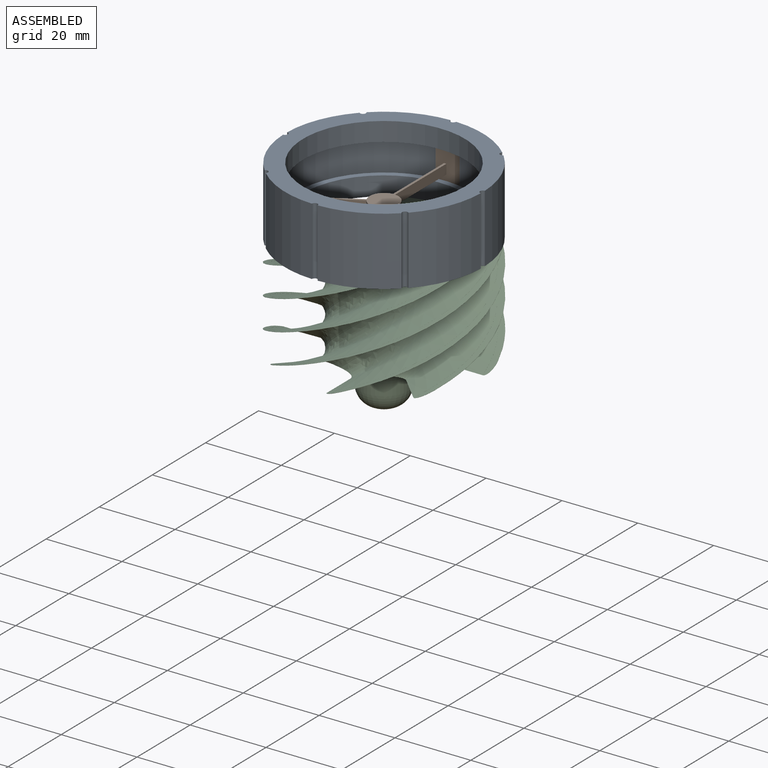
[diagram: assembled view]
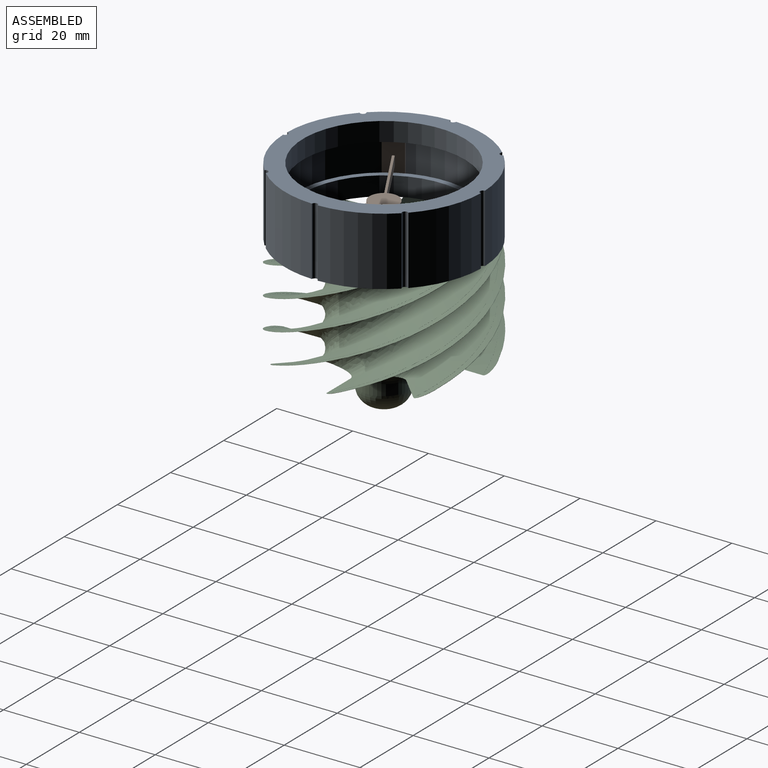
[diagram: assembled view, second angle]
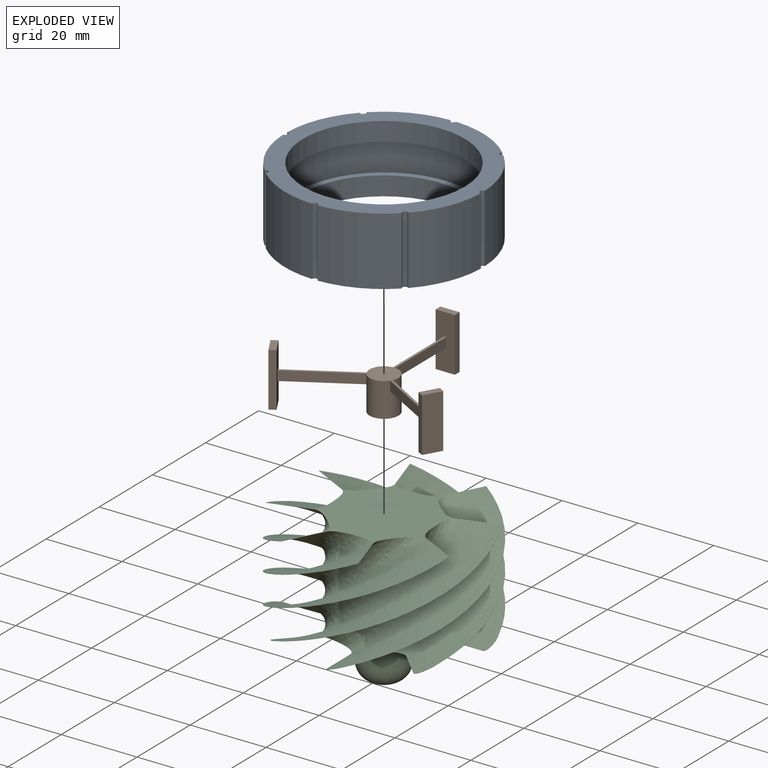
[diagram: exploded view]
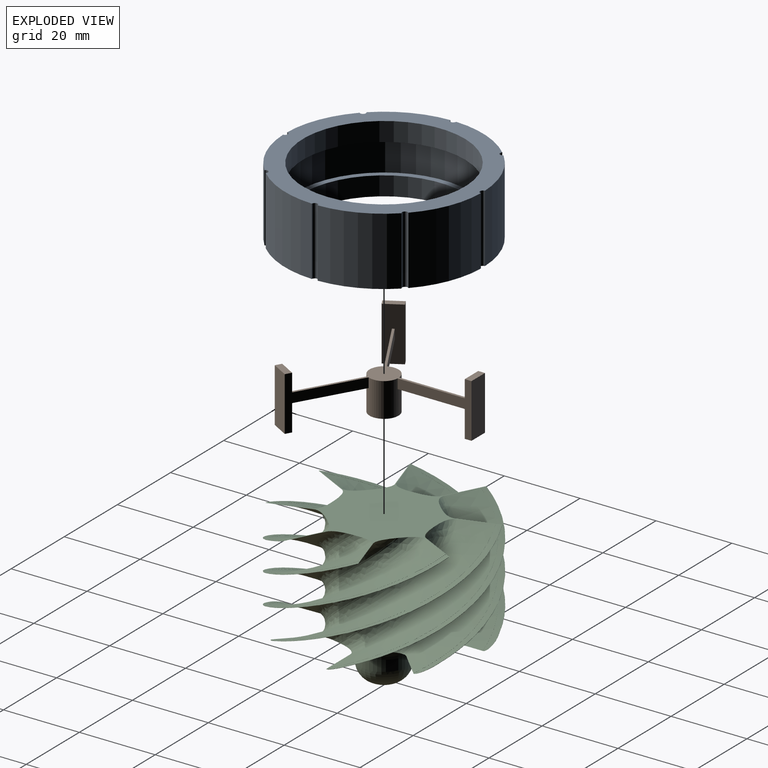
[diagram: exploded view, second angle]
ASSEMBLY  parts=3 mates=2
PART A: 27 faces, bbox 52.2x52.2x17.9 mm
  f0: plane 52.16x52.16mm, normal (0,0,1), area 700.3mm2, adj f1,f2,f3,f4,f5,f6,f7,f11
  f1: cylinder r=26.09mm len=17.95mm, axis (0,0,1), area 340.6mm2, adj f0,f13,f19,f26
  f2: cylinder r=26.09mm len=17.95mm, axis (0,0,1), area 340.6mm2, adj f0,f13,f25,f26
  f3: cylinder r=26.09mm len=17.95mm, axis (0,0,1), area 340.6mm2, adj f0,f13,f23,f24
  f4: cylinder r=26.09mm len=17.95mm, axis (0,0,1), area 340.6mm2, adj f0,f13,f22,f23
  f5: cylinder r=26.09mm len=17.95mm, axis (0,0,1), area 340.6mm2, adj f0,f13,f21,f22
  f6: cylinder r=26.09mm len=17.95mm, axis (0,0,1), area 340.6mm2, adj f0,f13,f20,f21
  f7: cylinder r=26.09mm len=17.95mm, axis (0,0,1), area 340.6mm2, adj f0,f13,f20,f25
  f8: plane 50.65x50.65mm, normal (0,0,-1), area 379.7mm2, adj f9,f18
  f9: cylinder r=22.82mm len=45.63mm, axis (0,0,1), area 606.2mm2, adj f8,f10
  f10: plane 45.63x45.63mm, normal (0,0,-1), area 204.6mm2, adj f9,f11
  f11: cylinder r=21.34mm len=42.68mm, axis (0,0,1), area 669.1mm2, adj f0,f10
  f12: cylinder r=26.09mm len=17.95mm, axis (0,0,1), area 340.6mm2, adj f0,f13,f19,f24
  f13: plane 52.16x52.16mm, normal (0,0,-1), area 700.3mm2, adj f1,f2,f3,f4,f5,f6,f7,f12
  f14: cylinder r=21.34mm len=42.68mm, axis (0,0,1), area 669.1mm2, adj f13,f15
  f15: plane 45.63x45.63mm, normal (0,0,1), area 204.6mm2, adj f14,f16
  f16: cylinder r=22.82mm len=45.63mm, axis (0,0,1), area 606.2mm2, adj f15,f17
  f17: plane 50.65x50.65mm, normal (0,0,1), area 379.7mm2, adj f16,f18
  f18: cylinder r=25.33mm len=50.65mm, axis (0,0,1), area 2613.8mm2, adj f8,f17
  f19: cylinder r=0.76mm len=17.95mm, axis (0,0,1), area 42.4mm2, adj f0,f1,f12,f13
  f20: cylinder r=0.76mm len=17.95mm, axis (0,0,1), area 42.4mm2, adj f0,f6,f7,f13
  f21: cylinder r=0.76mm len=17.95mm, axis (0,0,1), area 42.4mm2, adj f0,f5,f6,f13
  f22: cylinder r=0.76mm len=17.95mm, axis (0,0,1), area 42.4mm2, adj f0,f4,f5,f13
  f23: cylinder r=0.76mm len=17.95mm, axis (0,0,1), area 42.4mm2, adj f0,f3,f4,f13
  f24: cylinder r=0.76mm len=17.95mm, axis (0,0,1), area 42.4mm2, adj f0,f3,f12,f13
  f25: cylinder r=0.76mm len=17.95mm, axis (0,0,1), area 42.4mm2, adj f0,f2,f7,f13
  f26: cylinder r=0.76mm len=17.95mm, axis (0,0,1), area 42.4mm2, adj f0,f1,f2,f13
PART B: 30 faces, bbox 45.6x39.5x14.8 mm
  f0: plane 19.27x0.61mm, normal (0,0,-1), area 11.8mm2, adj f4,f5,f18,f19
  f1: plane 17x10.17mm, normal (0,0,-1), area 11.8mm2, adj f5,f6,f10,f11
  f2: plane 40.26x34.87mm, normal (0,0,1), area 81mm2, adj f4,f5,f6,f10,f11,f12,f16,f17
  f3: plane 17x10.17mm, normal (0,0,-1), area 11.8mm2, adj f5,f12,f16,f17
  f4: plane 19.27x2.54mm, normal (-1,0,0), area 48.9mm2, adj f0,f2,f5,f19
  f5: cylinder r=3.81mm len=8.99mm, axis (0,0,-1), area 210.6mm2, adj f0,f1,f2,f3,f4,f6,f11,f12
  f6: plane 16.69x9.64mm, normal (-0.5,0.87,0), area 48.9mm2, adj f1,f2,f5,f10
  f7: plane 14.22x1.54mm, normal (-0.5,0.87,0), area 25.3mm2, adj f8,f10,f27,f28
  f8: plane 14.22x4.4mm, normal (-0.87,-0.5,0), area 72.3mm2, adj f7,f9,f27,f28
  f9: plane 14.22x1.54mm, normal (0.5,-0.87,0), area 25.3mm2, adj f8,f10,f27,f28
  f10: plane 14.22x4.4mm, normal (0.87,0.5,0), area 70.7mm2, adj f1,f2,f6,f7,f9,f11,f27,f28
  f11: plane 16.69x9.64mm, normal (0.5,-0.87,0), area 48.9mm2, adj f1,f2,f5,f10
  f12: plane 16.69x9.64mm, normal (-0.5,-0.87,0), area 48.9mm2, adj f2,f3,f5,f16
  f13: plane 14.22x1.54mm, normal (-0.5,-0.87,0), area 25.3mm2, adj f14,f16,f25,f26
  f14: plane 14.22x4.4mm, normal (0.87,-0.5,0), area 72.3mm2, adj f13,f15,f25,f26
  f15: plane 14.22x1.54mm, normal (0.5,0.87,0), area 25.3mm2, adj f14,f16,f25,f26
  f16: plane 14.22x4.4mm, normal (-0.87,0.5,0), area 70.7mm2, adj f2,f3,f12,f13,f15,f17,f25,f26
  f17: plane 16.69x9.64mm, normal (0.5,0.87,0), area 48.9mm2, adj f2,f3,f5,f16
  f18: plane 19.27x2.54mm, normal (1,0,0), area 48.9mm2, adj f0,f2,f5,f19
  f19: plane 14.22x5.08mm, normal (0,-1,0), area 70.7mm2, adj f0,f2,f4,f18,f20,f22,f23,f24
  f20: plane 14.22x1.78mm, normal (1,0,0), area 25.3mm2, adj f19,f21,f23,f24
  f21: plane 14.22x5.08mm, normal (0,1,0), area 72.3mm2, adj f20,f22,f23,f24
  f22: plane 14.22x1.78mm, normal (-1,0,0), area 25.3mm2, adj f19,f21,f23,f24
  f23: plane 5.08x1.78mm, normal (0,0,-1), area 9mm2, adj f19,f20,f21,f22
  f24: plane 5.08x1.78mm, normal (0,0,1), area 9mm2, adj f19,f20,f21,f22
  f25: plane 5.29x4.08mm, normal (0,0,-1), area 9mm2, adj f13,f14,f15,f16
  f26: plane 5.29x4.08mm, normal (0,0,1), area 9mm2, adj f13,f14,f15,f16
  f27: plane 5.29x4.08mm, normal (0,0,-1), area 9mm2, adj f7,f8,f9,f10
  f28: plane 5.29x4.08mm, normal (0,0,1), area 9mm2, adj f7,f8,f9,f10
  f29: plane 7.62x7.62mm, normal (0,0,-1), area 45.6mm2, adj f5
PART C: 126 faces, bbox 55.2x44.4x55.2 mm
  f0: cylinder r=12.7mm len=26.92mm, axis (0,1,0), area 16.5mm2, adj f8,f9,f67,f93
  f1: cylinder r=12.7mm len=26.92mm, axis (0,1,0), area 16.5mm2, adj f8,f9,f65,f68
  f2: cylinder r=12.7mm len=26.92mm, axis (0,1,0), area 16.5mm2, adj f8,f9,f92,f107
  f3: cylinder r=12.7mm len=26.92mm, axis (0,1,0), area 16.5mm2, adj f8,f9,f51,f64
  f4: cylinder r=12.7mm len=26.92mm, axis (0,1,0), area 16.5mm2, adj f8,f9,f21,f106
  f5: cylinder r=12.7mm len=26.92mm, axis (0,1,0), area 16.5mm2, adj f8,f9,f22,f119
  f6: cylinder r=12.7mm len=26.92mm, axis (0,1,0), area 16.5mm2, adj f8,f9,f37,f50
  f7: cylinder r=12.7mm len=26.92mm, axis (0,1,0), area 16.5mm2, adj f8,f9,f36,f120
  f8: plane 49.97x49.97mm, normal (0,-1,0), area 574.4mm2, adj f0,f1,f2,f3,f4,f5,f6,f7
  f9: plane 50.64x50.64mm, normal (0,1,0), area 174.5mm2, adj f0,f1,f2,f3,f4,f5,f6,f7
  f10: bspline ~47.58x27.21mm, area 527.5mm2, adj f8,f9,f12,f22
  f11: bspline ~47.66x27.21mm, area 552.3mm2, adj f8,f9,f20,f21
  f12: bspline ~47.34x26.93mm, area 1.2mm2, adj f8,f9,f10,f13
  f13: bspline ~47.94x27.21mm, area 12.7mm2, adj f8,f9,f12,f14,f23
  f14: bspline ~47.94x27.21mm, area 1.2mm2, adj f8,f13,f15,f23
  f15: bspline ~50.51x27.21mm, area 96.1mm2, adj f8,f14,f16,f23
  f16: bspline ~50.59x27.21mm, area 4.4mm2, adj f8,f15,f17,f23
  f17: bspline ~50.59x27.21mm, area 96.1mm2, adj f8,f16,f18,f23
  f18: bspline ~47.99x27.21mm, area 1.2mm2, adj f8,f17,f19,f23
  f19: bspline ~47.97x27.21mm, area 12.7mm2, adj f8,f9,f18,f20,f23
  f20: bspline ~47.4x26.93mm, area 1.2mm2, adj f8,f9,f11,f19
  f21: bspline ~32.92x30.75mm, area 199.4mm2, adj f4,f8,f9,f11
  f22: bspline ~33.84x31.19mm, area 222.8mm2, adj f5,f8,f9,f10
  f23: bspline ~8.75x2.53mm, area 0.4mm2, adj f9,f13,f14,f15,f16,f17,f18,f19
  f24: bspline ~47.99x27.21mm, area 1.2mm2, adj f8,f25,f32,f33
  f25: bspline ~50.59x27.21mm, area 96.1mm2, adj f8,f24,f26,f32
  f26: bspline ~50.59x27.21mm, area 4.4mm2, adj f8,f25,f27,f32
  f27: bspline ~50.51x27.21mm, area 96.1mm2, adj f8,f26,f28,f32
  f28: bspline ~47.94x27.21mm, area 1.2mm2, adj f8,f27,f31,f32
  f29: bspline ~47.58x27.21mm, area 527.5mm2, adj f8,f9,f30,f37
  f30: bspline ~47.34x26.93mm, area 1.2mm2, adj f8,f9,f29,f31
  f31: bspline ~47.94x27.21mm, area 12.7mm2, adj f8,f9,f28,f30,f32
  f32: bspline ~8.75x2.53mm, area 0.4mm2, adj f9,f24,f25,f26,f27,f28,f31,f33
  f33: bspline ~47.97x27.21mm, area 12.7mm2, adj f8,f9,f24,f32,f34
  f34: bspline ~47.4x26.93mm, area 1.2mm2, adj f8,f9,f33,f35
  f35: bspline ~47.66x27.21mm, area 552.3mm2, adj f8,f9,f34,f36
  f36: bspline ~32.92x30.75mm, area 199.4mm2, adj f7,f8,f9,f35
  f37: bspline ~33.84x31.19mm, area 222.8mm2, adj f6,f8,f9,f29
  f38: bspline ~40.84x35.79mm, area 1.2mm2, adj f8,f39,f46,f47
  f39: bspline ~43.16x37.63mm, area 96.1mm2, adj f8,f38,f40,f46
  f40: bspline ~43.3x37.63mm, area 4.4mm2, adj f8,f39,f41,f46
  f41: bspline ~43.3x37.45mm, area 96.1mm2, adj f8,f40,f42,f46
  f42: bspline ~40.94x35.66mm, area 1.2mm2, adj f8,f41,f45,f46
  f43: bspline ~40.63x35.37mm, area 527.5mm2, adj f8,f9,f44,f51
  f44: bspline ~40.5x34.14mm, area 1.2mm2, adj f8,f9,f43,f45
  f45: bspline ~40.77x34.37mm, area 12.7mm2, adj f8,f9,f42,f44,f46
  f46: bspline ~7.64x6.67mm, area 0.4mm2, adj f9,f38,f39,f40,f41,f42,f45,f47
  f47: bspline ~40.84x35.74mm, area 12.7mm2, adj f8,f9,f38,f46,f48
  f48: bspline ~40.42x34.27mm, area 1.2mm2, adj f8,f9,f47,f49
  f49: bspline ~40.49x35.55mm, area 552.3mm2, adj f8,f9,f48,f50
  f50: bspline ~32.92x26.27mm, area 199.4mm2, adj f6,f8,f9,f49
  f51: bspline ~33.84x29.34mm, area 222.8mm2, adj f3,f8,f9,f43
  f52: bspline ~47.99x27.21mm, area 1.2mm2, adj f8,f53,f60,f61
  f53: bspline ~50.59x27.21mm, area 96.1mm2, adj f8,f52,f54,f60
  f54: bspline ~50.59x27.21mm, area 4.4mm2, adj f8,f53,f55,f60
  f55: bspline ~50.51x27.21mm, area 96.1mm2, adj f8,f54,f56,f60
  f56: bspline ~47.94x27.21mm, area 1.2mm2, adj f8,f55,f59,f60
  f57: bspline ~47.58x27.21mm, area 527.5mm2, adj f8,f9,f58,f65
  f58: bspline ~47.34x26.93mm, area 1.2mm2, adj f8,f9,f57,f59
  f59: bspline ~47.94x27.21mm, area 12.7mm2, adj f8,f9,f56,f58,f60
  f60: bspline ~8.75x2.53mm, area 0.4mm2, adj f9,f52,f53,f54,f55,f56,f59,f61
  f61: bspline ~47.97x27.21mm, area 12.7mm2, adj f8,f9,f52,f60,f62
  f62: bspline ~47.4x26.93mm, area 1.2mm2, adj f8,f9,f61,f63
  f63: bspline ~47.66x27.21mm, area 552.3mm2, adj f8,f9,f62,f64
  f64: bspline ~32.92x30.75mm, area 199.4mm2, adj f3,f8,f9,f63
  f65: bspline ~33.84x31.19mm, area 222.8mm2, adj f1,f8,f9,f57
  f66: bspline ~7.64x6.67mm, area 0.4mm2, adj f9,f70,f71,f72,f73,f74,f75,f76
  f67: bspline ~33.84x29.34mm, area 222.8mm2, adj f0,f8,f9,f79
  f68: bspline ~32.92x26.27mm, area 199.4mm2, adj f1,f8,f9,f78
  f69: bspline ~40.42x34.27mm, area 1.2mm2, adj f8,f9,f70,f78
  f70: bspline ~40.84x35.74mm, area 12.7mm2, adj f8,f9,f66,f69,f71
  f71: bspline ~40.84x35.79mm, area 1.2mm2, adj f8,f66,f70,f72
  f72: bspline ~43.16x37.63mm, area 96.1mm2, adj f8,f66,f71,f73
  f73: bspline ~43.3x37.63mm, area 4.4mm2, adj f8,f66,f72,f74
  f74: bspline ~43.3x37.45mm, area 96.1mm2, adj f8,f66,f73,f75
  f75: bspline ~40.94x35.66mm, area 1.2mm2, adj f8,f66,f74,f76
  f76: bspline ~40.77x34.37mm, area 12.7mm2, adj f8,f9,f66,f75,f77
  f77: bspline ~40.5x34.14mm, area 1.2mm2, adj f8,f9,f76,f79
  f78: bspline ~40.49x35.55mm, area 552.3mm2, adj f8,f9,f68,f69
  f79: bspline ~40.63x35.37mm, area 527.5mm2, adj f8,f9,f67,f77
  f80: bspline ~47.99x27.21mm, area 1.2mm2, adj f8,f81,f88,f89
  f81: bspline ~50.59x27.21mm, area 96.1mm2, adj f8,f80,f82,f88
  f82: bspline ~50.59x27.21mm, area 4.4mm2, adj f8,f81,f83,f88
  f83: bspline ~50.51x27.21mm, area 96.1mm2, adj f8,f82,f84,f88
  f84: bspline ~47.94x27.21mm, area 1.2mm2, adj f8,f83,f87,f88
  f85: bspline ~47.58x27.21mm, area 527.5mm2, adj f8,f9,f86,f92
  f86: bspline ~47.34x26.93mm, area 1.2mm2, adj f8,f9,f85,f87
  f87: bspline ~47.94x27.21mm, area 12.7mm2, adj f8,f9,f84,f86,f88
  f88: bspline ~8.75x2.53mm, area 0.4mm2, adj f9,f80,f81,f82,f83,f84,f87,f89
  f89: bspline ~47.97x27.21mm, area 12.7mm2, adj f8,f9,f80,f88,f90
  f90: bspline ~47.4x26.93mm, area 1.2mm2, adj f8,f9,f89,f91
  f91: bspline ~47.66x27.21mm, area 552.3mm2, adj f8,f9,f90,f93
  f92: bspline ~33.84x31.19mm, area 222.8mm2, adj f2,f8,f9,f85
  f93: bspline ~32.92x30.75mm, area 199.4mm2, adj f0,f8,f9,f91
  f94: bspline ~40.84x35.79mm, area 1.2mm2, adj f8,f95,f102,f103
  f95: bspline ~43.16x37.63mm, area 96.1mm2, adj f8,f94,f96,f102
  f96: bspline ~43.3x37.63mm, area 4.4mm2, adj f8,f95,f97,f102
  f97: bspline ~43.3x37.45mm, area 96.1mm2, adj f8,f96,f98,f102
  f98: bspline ~40.94x35.66mm, area 1.2mm2, adj f8,f97,f101,f102
  f99: bspline ~40.63x35.37mm, area 527.5mm2, adj f8,f9,f100,f106
  f100: bspline ~40.5x34.14mm, area 1.2mm2, adj f8,f9,f99,f101
  f101: bspline ~40.77x34.37mm, area 12.7mm2, adj f8,f9,f98,f100,f102
  f102: bspline ~7.64x6.67mm, area 0.4mm2, adj f9,f94,f95,f96,f97,f98,f101,f103
  f103: bspline ~40.84x35.74mm, area 12.7mm2, adj f8,f9,f94,f102,f104
  f104: bspline ~40.42x34.27mm, area 1.2mm2, adj f8,f9,f103,f105
  f105: bspline ~40.49x35.55mm, area 552.3mm2, adj f8,f9,f104,f107
  f106: bspline ~33.84x29.34mm, area 222.8mm2, adj f4,f8,f9,f99
  f107: bspline ~32.92x26.27mm, area 199.4mm2, adj f2,f8,f9,f105
  f108: bspline ~40.63x35.37mm, area 527.5mm2, adj f8,f9,f110,f120
  f109: bspline ~40.49x35.55mm, area 552.3mm2, adj f8,f9,f118,f119
  f110: bspline ~40.5x34.14mm, area 1.2mm2, adj f8,f9,f108,f111
  f111: bspline ~40.77x34.37mm, area 12.7mm2, adj f8,f9,f110,f112,f121
  f112: bspline ~40.94x35.66mm, area 1.2mm2, adj f8,f111,f113,f121
  f113: bspline ~43.3x37.45mm, area 96.1mm2, adj f8,f112,f114,f121
  f114: bspline ~43.3x37.63mm, area 4.4mm2, adj f8,f113,f115,f121
  f115: bspline ~43.16x37.63mm, area 96.1mm2, adj f8,f114,f116,f121
  f116: bspline ~40.84x35.79mm, area 1.2mm2, adj f8,f115,f117,f121
  f117: bspline ~40.84x35.74mm, area 12.7mm2, adj f8,f9,f116,f118,f121
  f118: bspline ~40.42x34.27mm, area 1.2mm2, adj f8,f9,f109,f117
  f119: bspline ~32.92x26.27mm, area 199.4mm2, adj f5,f8,f9,f109
  f120: bspline ~33.84x29.34mm, area 222.8mm2, adj f7,f8,f9,f108
  f121: bspline ~7.64x6.67mm, area 0.4mm2, adj f9,f111,f112,f113,f114,f115,f116,f117
  f122: cylinder r=6.35mm len=12.7mm, axis (0,-1,0), area 115.3mm2, adj f124,f125
  f123: plane 2.89x2.89mm, normal (0,1,0), area 6.6mm2, adj f125
  f124: torus R=11.26mm, axis (0,-1,0), area 393.8mm2, adj f9,f122
  f125: torus R=1.44mm, axis (0,1,0), area 221.1mm2, adj f122,f123
PLACE A t=(-57.13,-19.66,-18.08)mm fixed
PLACE B t=(-57.13,-19.66,-20.62)mm
PLACE C rot(axis=(-1,0,0),90deg) t=(-57.13,-19.66,-53.99)mm
MATE revolute A.f1 <-> B.f5  axis (0,0,1) through (-57.13,-19.66,-18.08)mm
MATE fastened B.f5 <-> C.f0  axis (0,0,-1) through (-57.13,-19.66,-27.07)mm
